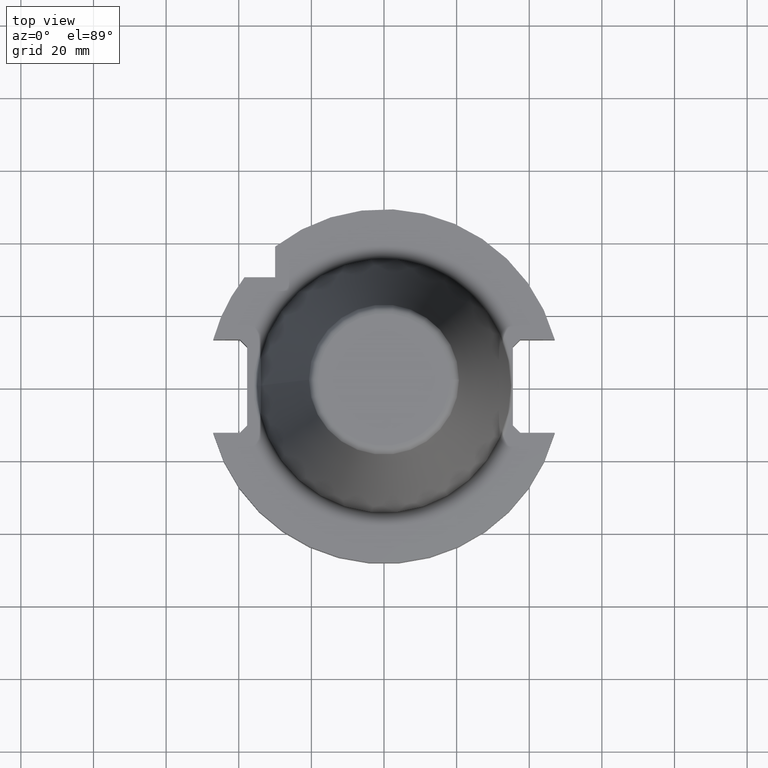
[diagram: clean part render]
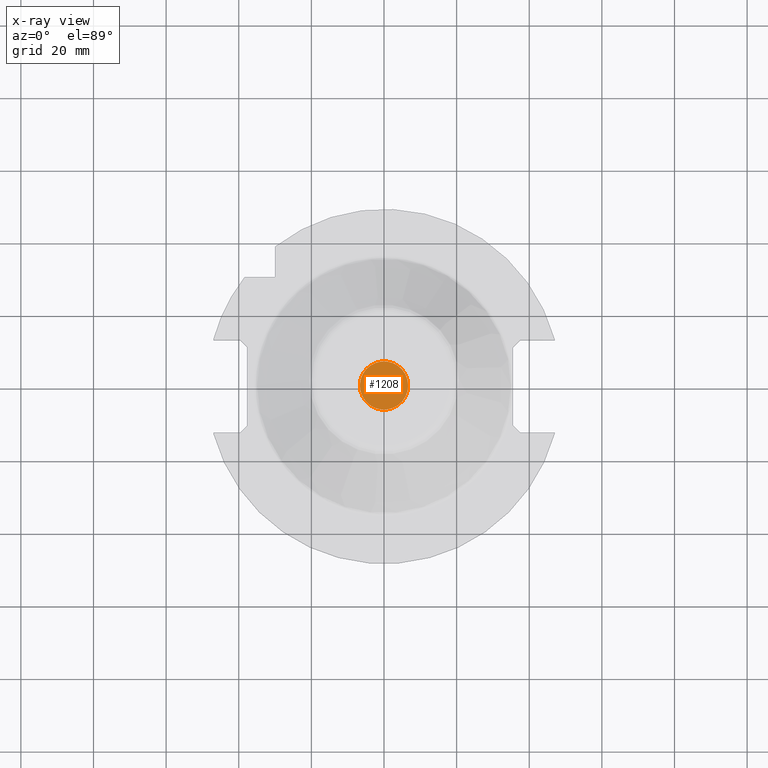
[diagram: x-ray — body ghosted, one internal face saturated and labeled with its STEP entity id]
A machine part, top view, then the same camera in x-ray: the body is ghosted and one INTERNAL B-rep face — a face not visible from any outside direction — is saturated and labeled: STEP entity #1208.
In plain terms, the highlighted planar face has unit normal (0, 0, -1).
Its self-contained STEP definition (entity closure, byte-faithful):
#585=ORIENTED_EDGE('',*,*,#752,.F.);
#752=EDGE_CURVE('',#869,#869,#925,.T.);
#869=VERTEX_POINT('',#2534);
#925=CIRCLE('',#1344,6.65);
#1015=EDGE_LOOP('',(#585));
#1105=FACE_BOUND('',#1015,.T.);
#1137=PLANE('',#1345);
#1208=ADVANCED_FACE('',(#1105),#1137,.T.);
#1344=AXIS2_PLACEMENT_3D('',#2533,#1674,#1675);
#1345=AXIS2_PLACEMENT_3D('',#2535,#1676,#1677);
#1674=DIRECTION('',(0.,0.,1.));
#1675=DIRECTION('',(1.,0.,0.));
#1676=DIRECTION('',(0.,0.,-1.));
#1677=DIRECTION('',(-1.,0.,0.));
#2533=CARTESIAN_POINT('',(0.,0.,4.99999999999999));
#2534=CARTESIAN_POINT('',(6.65,0.,4.99999999999999));
#2535=CARTESIAN_POINT('',(6.65,0.,4.99999999999999));